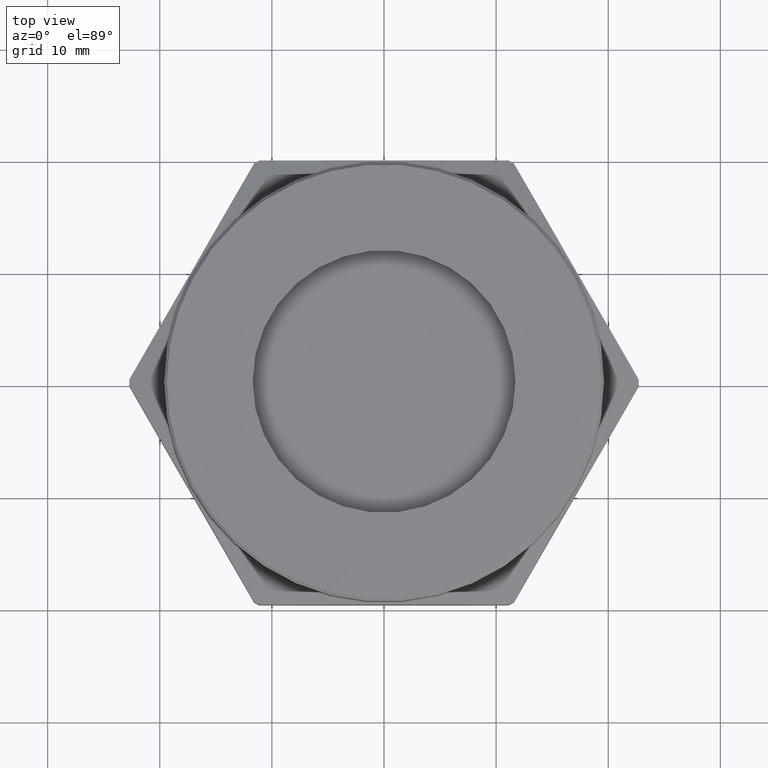
[diagram: clean part render]
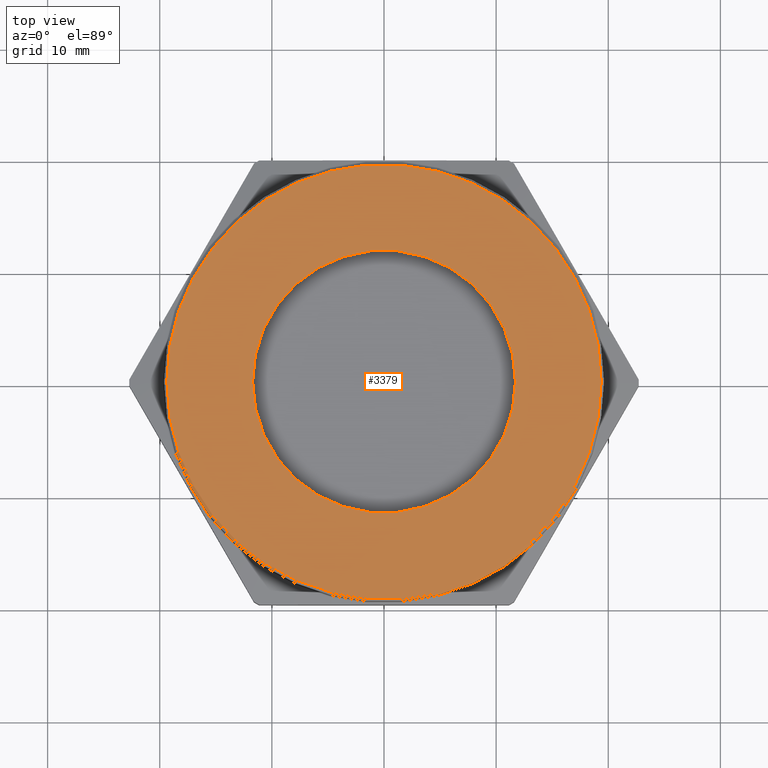
[diagram: same view with one face highlighted and labeled with its STEP entity id]
A machine part, top view. The second image highlights one B-rep face of the part: STEP entity #3379.
In plain terms, the highlighted planar face has unit normal (0, 0, 1).
Its self-contained STEP definition (entity closure, byte-faithful):
#684 = FACE_OUTER_BOUND ( 'NONE', #945, .T. ) ;
#945 = EDGE_LOOP ( 'NONE', ( #1109, #1110 ) ) ;
#1107 = ORIENTED_EDGE ( 'NONE', *, *, #1270, .F. ) ;
#1108 = ORIENTED_EDGE ( 'NONE', *, *, #1248, .F. ) ;
#1109 = ORIENTED_EDGE ( 'NONE', *, *, #1269, .T. ) ;
#1110 = ORIENTED_EDGE ( 'NONE', *, *, #1532, .T. ) ;
#1215 = CIRCLE ( 'NONE', #1315, 0.4614999999999999700 ) ;
#1248 = EDGE_CURVE ( 'NONE', #1586, #1602, #1215, .T. ) ;
#1269 = EDGE_CURVE ( 'NONE', #1585, #1588, #2418, .T. ) ;
#1270 = EDGE_CURVE ( 'NONE', #1602, #1586, #2425, .T. ) ;
#1315 = AXIS2_PLACEMENT_3D ( 'NONE', #1770, #1771, #1772 ) ;
#1323 = AXIS2_PLACEMENT_3D ( 'NONE', #3211, #3212, #3213 ) ;
#1324 = AXIS2_PLACEMENT_3D ( 'NONE', #3215, #3216, #3217 ) ;
#1356 = AXIS2_PLACEMENT_3D ( 'NONE', #2770, #2771, #2772 ) ;
#1434 = AXIS2_PLACEMENT_3D ( 'NONE', #2088, #2087, #2092 ) ;
#1512 = EDGE_LOOP ( 'NONE', ( #1107, #1108 ) ) ;
#1532 = EDGE_CURVE ( 'NONE', #1588, #1585, #2488, .T. ) ;
#1585 = VERTEX_POINT ( 'NONE', #2206 ) ;
#1586 = VERTEX_POINT ( 'NONE', #2202 ) ;
#1588 = VERTEX_POINT ( 'NONE', #2191 ) ;
#1602 = VERTEX_POINT ( 'NONE', #2221 ) ;
#1770 = CARTESIAN_POINT ( 'NONE',  ( 0.0000000000000000000, 0.0000000000000000000, 0.3999999999999999700 ) ) ;
#1771 = DIRECTION ( 'NONE',  ( -0.0000000000000000000, -0.0000000000000000000, 1.000000000000000000 ) ) ;
#1772 = DIRECTION ( 'NONE',  ( 1.000000000000000000, 0.0000000000000000000, 0.0000000000000000000 ) ) ;
#2087 = DIRECTION ( 'NONE',  ( 0.0000000000000000000, 0.0000000000000000000, 1.000000000000000000 ) ) ;
#2088 = CARTESIAN_POINT ( 'NONE',  ( 0.0000000000000000000, 0.0000000000000000000, 0.3999999999999999700 ) ) ;
#2090 = PLANE ( 'NONE',  #1434 ) ;
#2092 = DIRECTION ( 'NONE',  ( 1.000000000000000000, 0.0000000000000000000, -0.0000000000000000000 ) ) ;
#2191 = CARTESIAN_POINT ( 'NONE',  ( 0.7624999999999998400, 9.399164183455935400E-017, 0.3999999999999999700 ) ) ;
#2202 = CARTESIAN_POINT ( 'NONE',  ( -0.4614999999999999700, 5.651744978065034200E-017, 0.3999999999999999700 ) ) ;
#2206 = CARTESIAN_POINT ( 'NONE',  ( -0.7624999999999998400, 0.0000000000000000000, 0.3999999999999999700 ) ) ;
#2221 = CARTESIAN_POINT ( 'NONE',  ( 0.4614999999999999700, 0.0000000000000000000, 0.3999999999999999700 ) ) ;
#2418 = CIRCLE ( 'NONE', #1323, 0.7624999999999998400 ) ;
#2425 = CIRCLE ( 'NONE', #1324, 0.4614999999999999700 ) ;
#2488 = CIRCLE ( 'NONE', #1356, 0.7624999999999998400 ) ;
#2602 = FACE_BOUND ( 'NONE', #1512, .T. ) ;
#2770 = CARTESIAN_POINT ( 'NONE',  ( 0.0000000000000000000, 0.0000000000000000000, 0.3999999999999999700 ) ) ;
#2771 = DIRECTION ( 'NONE',  ( 0.0000000000000000000, 0.0000000000000000000, 1.000000000000000000 ) ) ;
#2772 = DIRECTION ( 'NONE',  ( 1.000000000000000000, 0.0000000000000000000, 0.0000000000000000000 ) ) ;
#3211 = CARTESIAN_POINT ( 'NONE',  ( 0.0000000000000000000, 0.0000000000000000000, 0.3999999999999999700 ) ) ;
#3212 = DIRECTION ( 'NONE',  ( 0.0000000000000000000, 0.0000000000000000000, 1.000000000000000000 ) ) ;
#3213 = DIRECTION ( 'NONE',  ( 1.000000000000000000, 0.0000000000000000000, 0.0000000000000000000 ) ) ;
#3215 = CARTESIAN_POINT ( 'NONE',  ( 0.0000000000000000000, 0.0000000000000000000, 0.3999999999999999700 ) ) ;
#3216 = DIRECTION ( 'NONE',  ( -0.0000000000000000000, -0.0000000000000000000, 1.000000000000000000 ) ) ;
#3217 = DIRECTION ( 'NONE',  ( 1.000000000000000000, 0.0000000000000000000, 0.0000000000000000000 ) ) ;
#3379 = ADVANCED_FACE ( 'NONE', ( #2602, #684 ), #2090, .T. ) ;